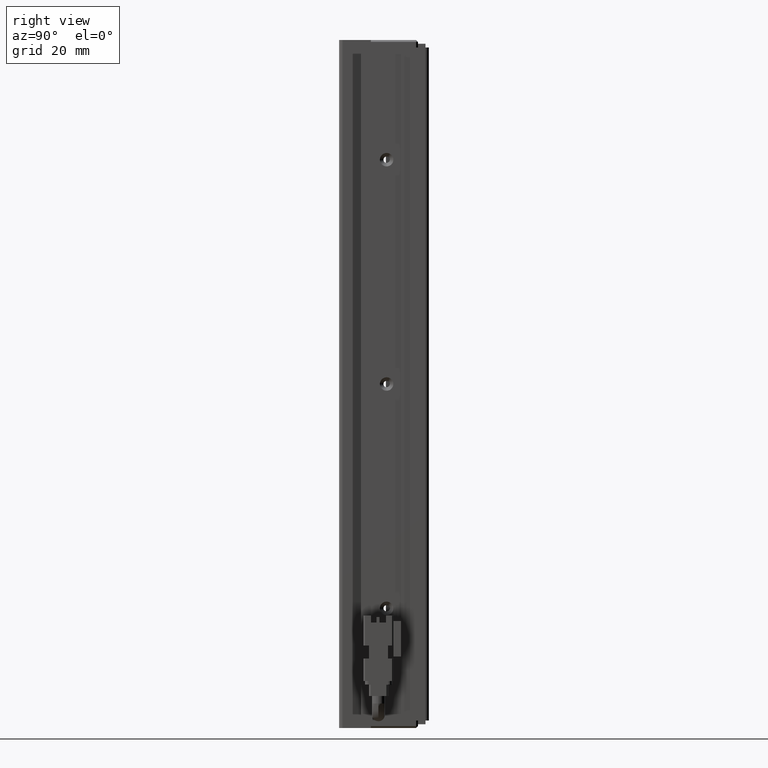
[diagram: clean part render]
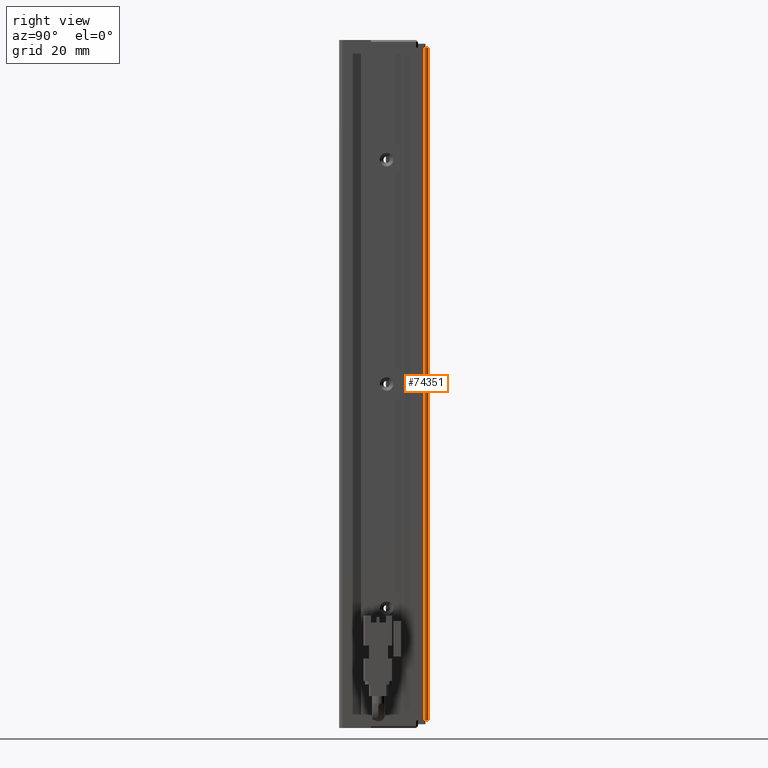
[diagram: same view with one face highlighted and labeled with its STEP entity id]
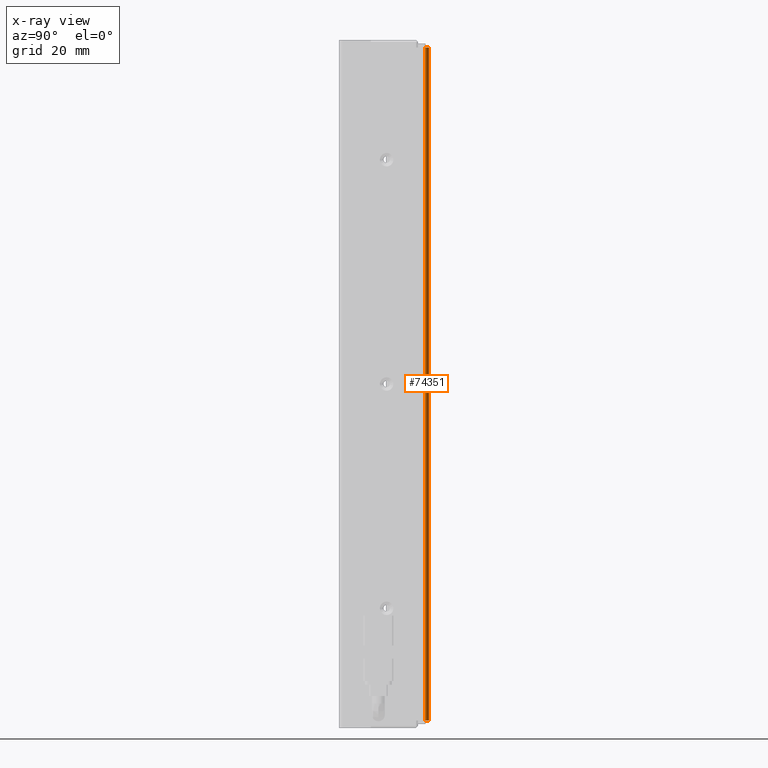
[diagram: x-ray of the same camera — body ghosted, the highlighted face saturated]
A machine part, right view. The second image highlights one B-rep face of the part: STEP entity #74351.
The next image is the same camera in x-ray: the body ghosted, the highlighted face saturated — about 0% of this face is hidden behind the body in this view.
In plain terms, the highlighted cylindrical surface (edge-blend (fillet) strip) has radius 1 mm, axis along (-0, -0, -1).
Its self-contained STEP definition (entity closure, byte-faithful):
#68 = CIRCLE ( 'NONE', #71634, 1.000000000000000900 ) ;
#2300 = CARTESIAN_POINT ( 'NONE',  ( 57.42537974683541800, 34.99073232304837700, -25.00000000000000700 ) ) ;
#2392 = CARTESIAN_POINT ( 'NONE',  ( 57.42537974683541100, 34.99073232304837700, -23.00000000000000700 ) ) ;
#4814 = CIRCLE ( 'NONE', #71297, 1.000000000000000900 ) ;
#4902 = VERTEX_POINT ( 'NONE', #37352 ) ;
#6358 = VERTEX_POINT ( 'NONE', #2300 ) ;
#9475 = DIRECTION ( 'NONE',  ( -0.0000000000000000000, -0.0000000000000000000, -1.000000000000000000 ) ) ;
#10894 = DIRECTION ( 'NONE',  ( -0.0000000000000000000, -0.0000000000000000000, -1.000000000000000000 ) ) ;
#13302 = ORIENTED_EDGE ( 'NONE', *, *, #67675, .T. ) ;
#14011 = CARTESIAN_POINT ( 'NONE',  ( 57.42537974683541800, 33.99073232304837700, -23.00000000000000700 ) ) ;
#14248 = CARTESIAN_POINT ( 'NONE',  ( 57.42537974683541800, 33.99073232304837700, -205.0000000000000300 ) ) ;
#14475 = DIRECTION ( 'NONE',  ( 0.0000000000000000000, 0.0000000000000000000, 1.000000000000000000 ) ) ;
#15026 = DIRECTION ( 'NONE',  ( 0.0000000000000000000, 0.0000000000000000000, 1.000000000000000000 ) ) ;
#17653 = ORIENTED_EDGE ( 'NONE', *, *, #57824, .T. ) ;
#21399 = DIRECTION ( 'NONE',  ( -1.000000000000000000, 0.0000000000000000000, 0.0000000000000000000 ) ) ;
#22466 = FACE_OUTER_BOUND ( 'NONE', #24356, .T. ) ;
#23093 = EDGE_CURVE ( 'NONE', #4902, #41954, #68, .T. ) ;
#24356 = EDGE_LOOP ( 'NONE', ( #39658, #25037, #17653, #13302 ) ) ;
#25037 = ORIENTED_EDGE ( 'NONE', *, *, #23093, .T. ) ;
#27281 = CARTESIAN_POINT ( 'NONE',  ( 58.42537974683542500, 33.99073232304837700, -25.00000000000000700 ) ) ;
#27508 = VECTOR ( 'NONE', #10894, 1000.000000000000000 ) ;
#28132 = VERTEX_POINT ( 'NONE', #27281 ) ;
#34742 = CYLINDRICAL_SURFACE ( 'NONE', #68196, 1.000000000000000900 ) ;
#37352 = CARTESIAN_POINT ( 'NONE',  ( 58.42537974683542500, 33.99073232304837700, -205.0000000000000300 ) ) ;
#39658 = ORIENTED_EDGE ( 'NONE', *, *, #68269, .T. ) ;
#41954 = VERTEX_POINT ( 'NONE', #49624 ) ;
#45245 = DIRECTION ( 'NONE',  ( -1.000000000000000000, 0.0000000000000000000, 0.0000000000000000000 ) ) ;
#49624 = CARTESIAN_POINT ( 'NONE',  ( 57.42537974683541800, 34.99073232304837700, -205.0000000000000300 ) ) ;
#50425 = CARTESIAN_POINT ( 'NONE',  ( 57.42537974683541800, 33.99073232304837700, -25.00000000000000700 ) ) ;
#57824 = EDGE_CURVE ( 'NONE', #41954, #6358, #78816, .T. ) ;
#59630 = DIRECTION ( 'NONE',  ( -1.000000000000000000, 0.0000000000000000000, 0.0000000000000000000 ) ) ;
#62545 = DIRECTION ( 'NONE',  ( -0.0000000000000000000, -0.0000000000000000000, -1.000000000000000000 ) ) ;
#62579 = VECTOR ( 'NONE', #14475, 1000.000000000000000 ) ;
#67675 = EDGE_CURVE ( 'NONE', #6358, #28132, #4814, .T. ) ;
#68196 = AXIS2_PLACEMENT_3D ( 'NONE', #14011, #62545, #21399 ) ;
#68269 = EDGE_CURVE ( 'NONE', #28132, #4902, #75029, .T. ) ;
#71297 = AXIS2_PLACEMENT_3D ( 'NONE', #50425, #9475, #59630 ) ;
#71634 = AXIS2_PLACEMENT_3D ( 'NONE', #14248, #15026, #45245 ) ;
#72763 = CARTESIAN_POINT ( 'NONE',  ( 58.42537974683542500, 33.99073232304837700, -23.00000000000000700 ) ) ;
#74351 = ADVANCED_FACE ( 'NONE', ( #22466 ), #34742, .T. ) ;
#75029 = LINE ( 'NONE', #72763, #27508 ) ;
#78816 = LINE ( 'NONE', #2392, #62579 ) ;